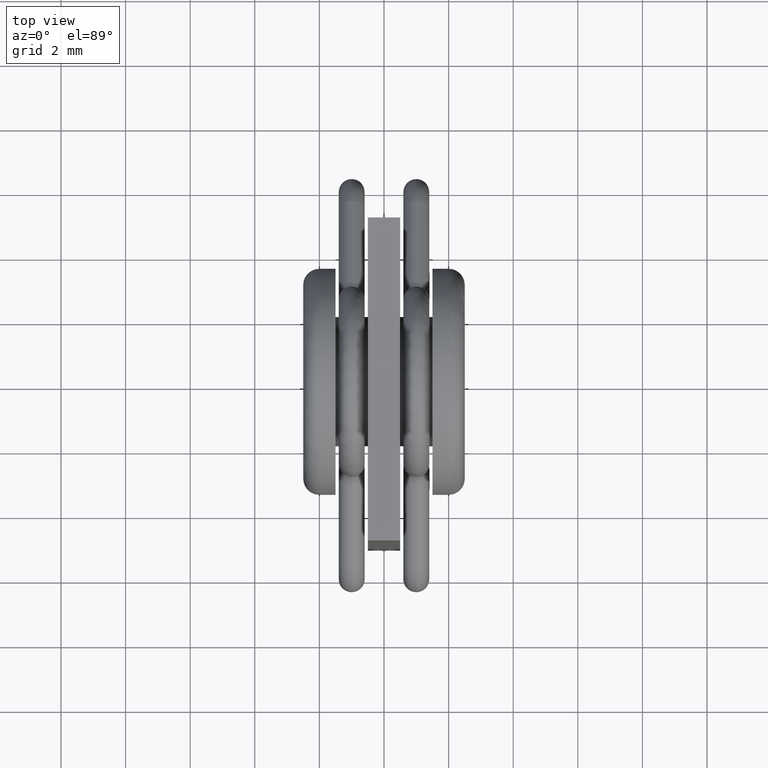
[diagram: clean part render]
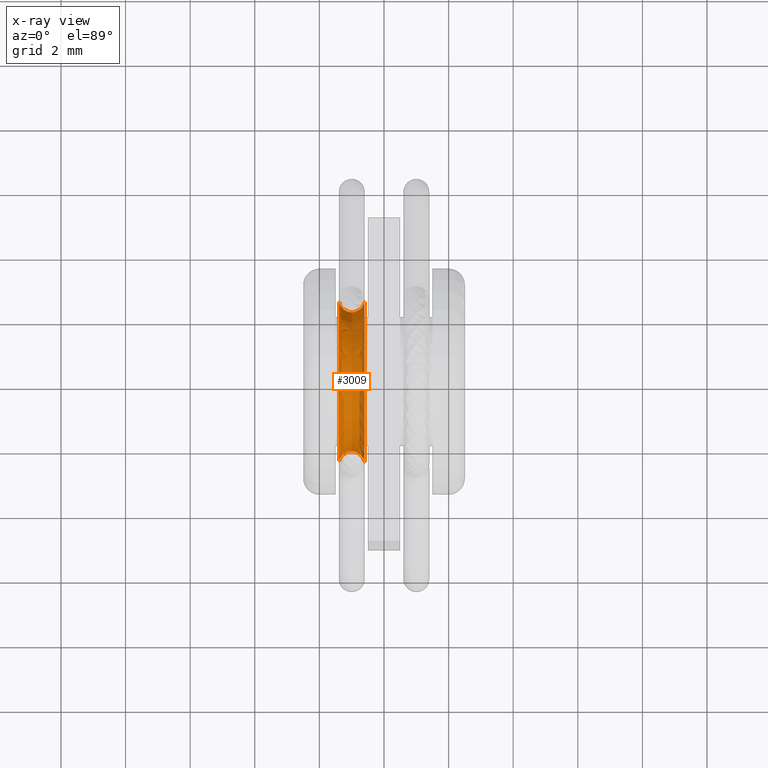
[diagram: x-ray — body ghosted, one internal face saturated and labeled with its STEP entity id]
A machine part, top view, then the same camera in x-ray: the body is ghosted and one INTERNAL B-rep face — a face not visible from any outside direction — is saturated and labeled: STEP entity #3009.
In plain terms, the highlighted face is a freeform B-spline surface patch.
Its self-contained STEP definition (entity closure, byte-faithful):
#5 = CARTESIAN_POINT ( 'NONE',  ( -0.5999999999999993117, 3.344587359466233867, 13.21971619596601677 ) ) ;
#13 = CARTESIAN_POINT ( 'NONE',  ( -1.399999999999999467, 2.550000000000002043, 12.78414580212309026 ) ) ;
#18 = CARTESIAN_POINT ( 'NONE',  ( -0.5999999999999990896, 3.350009266988449141, 12.91676238393189102 ) ) ;
#27 = CARTESIAN_POINT ( 'NONE',  ( -1.400000000000000133, 0.6675863731872427875, 15.54999999999883897 ) ) ;
#29 = EDGE_CURVE ( 'NONE', #499, #1039, #1007, .T. ) ;
#43 = CARTESIAN_POINT ( 'NONE',  ( -0.5999999999999996447, 2.446168698231667715, 13.01365392415007527 ) ) ;
#71 = CARTESIAN_POINT ( 'NONE',  ( -0.5999999999999996447, 2.468288161014300819, 13.66175922868808001 ) ) ;
#90 = CARTESIAN_POINT ( 'NONE',  ( -0.5999999999999999778, 1.693923247754893335, 13.45414849027617521 ) ) ;
#100 = CARTESIAN_POINT ( 'NONE',  ( -0.6423638675424737654, -2.342088657897357873, 13.02688372008577744 ) ) ;
#128 = CARTESIAN_POINT ( 'NONE',  ( -0.9999999999999963363, 2.149461642521075522, 13.05065182157097148 ) ) ;
#148 = CARTESIAN_POINT ( 'NONE',  ( -0.5999999999999997558, 2.529478931371553330, 13.33348523255367368 ) ) ;
#158 = ORIENTED_EDGE ( 'NONE', *, *, #1685, .F. ) ;
#162 = CARTESIAN_POINT ( 'NONE',  ( -0.6000000000000013101, -1.750004840964172415, 12.93933523953642784 ) ) ;
#169 = CARTESIAN_POINT ( 'NONE',  ( -0.5999999999999998668, 1.331067674462010686, 15.27517690940495854 ) ) ;
#180 = CARTESIAN_POINT ( 'NONE',  ( -0.9999999999999963363, 2.149461642521075522, 13.05065182157097148 ) ) ;
#183 = CARTESIAN_POINT ( 'NONE',  ( -1.400000000000000799, -1.747172501213716478, 13.11477711729564888 ) ) ;
#184 = CARTESIAN_POINT ( 'NONE',  ( -1.209534549102453393, -2.193180601715889910, 13.04540498428416129 ) ) ;
#198 = CARTESIAN_POINT ( 'NONE',  ( -0.6000000000000015321, -3.178629614356319966, 14.08022694973900002 ) ) ;
#212 = CARTESIAN_POINT ( 'NONE',  ( -1.399999999999999467, 2.550000000000002043, 12.85609720141527745 ) ) ;
#225 = CARTESIAN_POINT ( 'NONE',  ( -1.399999999999999689, 2.039149600807544704, 14.56709498333606234 ) ) ;
#241 = CARTESIAN_POINT ( 'NONE',  ( -1.399999999999999467, 2.550000000000002043, 12.78414580212309026 ) ) ;
#253 = CARTESIAN_POINT ( 'NONE',  ( -0.6000000000000016431, -3.350000000000000977, 12.85609720141538048 ) ) ;
#259 = CARTESIAN_POINT ( 'NONE',  ( -1.399999999999999911, 1.750004840964110464, 12.93933523953643849 ) ) ;
#271 = CARTESIAN_POINT ( 'NONE',  ( -1.399999999999999467, 2.550000000000009148, 13.00000000000001066 ) ) ;
#275 = CARTESIAN_POINT ( 'NONE',  ( -0.6428036577835406495, 2.341667357157602769, 13.02693604283492057 ) ) ;
#297 = CARTESIAN_POINT ( 'NONE',  ( -1.400000000000001243, -2.517196728838199782, 13.41615929504404825 ) ) ;
#304 = CARTESIAN_POINT ( 'NONE',  ( -1.400000000000000133, 1.399416392711129165, 14.07545734150523309 ) ) ;
#320 = CARTESIAN_POINT ( 'NONE',  ( -1.400000000000000799, -1.735916913686351037, 13.22886241449764455 ) ) ;
#335 = CARTESIAN_POINT ( 'NONE',  ( -0.6000000000000015321, -2.550000000001543032, 13.00000000000575717 ) ) ;
#383 = CARTESIAN_POINT ( 'NONE',  ( -0.6000000000000004219, -0.4581475110107759985, 14.75000000000115818 ) ) ;
#398 = CARTESIAN_POINT ( 'NONE',  ( -0.5999999999999998668, 1.331067674462010686, 15.27517690940495854 ) ) ;
#413 = CARTESIAN_POINT ( 'NONE',  ( -0.6000000000000011990, -2.468288161014357218, 13.66175922868801251 ) ) ;
#414 = CARTESIAN_POINT ( 'NONE',  ( -1.104746793284792750, -2.149461642521046212, 13.05065182157087911 ) ) ;
#421 = CARTESIAN_POINT ( 'NONE',  ( -1.399999999999999467, 2.227823959846286783, 14.28480567347927810 ) ) ;
#425 = B_SPLINE_CURVE_WITH_KNOTS ( 'NONE', 3,
 ( #128, #2803, #1102, #2283, #3010, #1814 ),
 .UNSPECIFIED., .F., .F.,
 ( 4, 2, 4 ),
 ( 0.0006204604756801583272, 0.0009343973126508284092, 0.001248334149621498600 ),
 .UNSPECIFIED. ) ;
#433 = CARTESIAN_POINT ( 'NONE',  ( -1.400000000000001243, -1.660478156753226076, 13.56429766031139117 ) ) ;
#434 = CARTESIAN_POINT ( 'NONE',  ( -1.400000000000001243, -2.550000000000001155, 13.00000000000000178 ) ) ;
#447 = CARTESIAN_POINT ( 'NONE',  ( -1.400000000000001465, -3.323040949056754290, 13.43810805060968150 ) ) ;
#458 = CARTESIAN_POINT ( 'NONE',  ( -0.6000000000000010880, -2.678882808903880530, 15.05873262516628230 ) ) ;
#470 = CARTESIAN_POINT ( 'NONE',  ( -1.399999999999999245, 3.344587359466234755, 13.21971619596601677 ) ) ;
#481 = CARTESIAN_POINT ( 'NONE',  ( -0.9999999999999963363, 2.149461642521075522, 13.05065182157097148 ) ) ;
#488 = CARTESIAN_POINT ( 'NONE',  ( -0.6000000000000010880, -1.748657533117035534, 15.98895790059223998 ) ) ;
#493 = CARTESIAN_POINT ( 'NONE',  ( -1.399999999999999467, 2.545879930339978170, 13.16724665663082305 ) ) ;
#498 = B_SPLINE_CURVE_WITH_KNOTS ( 'NONE', 3,
 ( #271, #972, #1739, #2601, #1502, #2469, #1260, #421, #1404, #2408, #2025, #2718, #2264, #1276, #2983, #817, #2498, #1553, #800, #2011, #1785, #851 ),
 .UNSPECIFIED., .F., .F.,
 ( 4, 2, 2, 2, 2, 2, 2, 2, 2, 2, 4 ),
 ( -1.545224709151703387E-15, 0.03124999999999862957, 0.06249999999999879957, 0.1249999999999991535, 0.2499999999999998335, 0.5000000000000012212, 0.7500000000000026645, 0.8750000000000033307, 0.9375000000000036637, 0.9687500000000037748, 1.000000000000003997 ),
 .UNSPECIFIED. ) ;
#499 = VERTEX_POINT ( 'NONE', #2221 ) ;
#500 = CARTESIAN_POINT ( 'NONE',  ( -1.400000000000001465, -2.926749123719576851, 14.68788196319920125 ) ) ;
#502 = ORIENTED_EDGE ( 'NONE', *, *, #29, .T. ) ;
#522 = CARTESIAN_POINT ( 'NONE',  ( -1.400000000000001021, -1.331067674462242278, 15.27517690940617356 ) ) ;
#537 = CARTESIAN_POINT ( 'NONE',  ( -1.399999999999999467, 2.419553885554824202, 13.82226230502555353 ) ) ;
#551 = CARTESIAN_POINT ( 'NONE',  ( -0.5999999999999990896, 3.350000000000000977, 12.85609720141527923 ) ) ;
#571 = CARTESIAN_POINT ( 'NONE',  ( -0.6000000000000000888, 1.749994369725758725, 13.07055603607908267 ) ) ;
#597 = VERTEX_POINT ( 'NONE', #2295 ) ;
#612 = EDGE_LOOP ( 'NONE', ( #2369, #1894, #1689, #502, #158, #2475 ) ) ;
#639 = CARTESIAN_POINT ( 'NONE',  ( -0.6000000000000004219, 0.4581475110107837145, 14.74999999999884004 ) ) ;
#654 = CARTESIAN_POINT ( 'NONE',  ( -0.6000000000000000888, 1.735916913686352370, 13.22886241449764988 ) ) ;
#658 = CARTESIAN_POINT ( 'NONE',  ( -0.6000000000000013101, -2.227823959846339630, 14.28480567348001529 ) ) ;
#669 = CARTESIAN_POINT ( 'NONE',  ( -0.6000000000000000888, 1.750000000000001554, 12.78414580212309204 ) ) ;
#675 = CARTESIAN_POINT ( 'NONE',  ( -0.5999999999999997558, 2.529478931371553330, 13.33348523255367368 ) ) ;
#685 = CARTESIAN_POINT ( 'NONE',  ( -0.5999999999999993117, 3.323040949056754734, 13.43810805060969393 ) ) ;
#687 = CARTESIAN_POINT ( 'NONE',  ( -1.400000000000001465, -2.444751026147265804, 13.01384034950394764 ) ) ;
#695 = CARTESIAN_POINT ( 'NONE',  ( -0.6000000000000004219, 0.6675863731872418994, 15.54999999999883897 ) ) ;
#699 = CARTESIAN_POINT ( 'NONE',  ( -1.399999999999999467, 2.419553885554824202, 13.82226230502555353 ) ) ;
#713 = CARTESIAN_POINT ( 'NONE',  ( -1.399999999999999467, 2.550007053976280247, 12.92804881173416298 ) ) ;
#733 = CARTESIAN_POINT ( 'NONE',  ( -1.399999999999999467, 3.350000000000001865, 12.78414580212309204 ) ) ;
#743 = CARTESIAN_POINT ( 'NONE',  ( -1.399999999999999467, 2.227823959846286783, 14.28480567347927810 ) ) ;
#750 = CARTESIAN_POINT ( 'NONE',  ( -1.400000000000001465, -1.748657533117180529, 15.98895790059223998 ) ) ;
#757 = CARTESIAN_POINT ( 'NONE',  ( -0.8952353300198849784, 2.149461642521073745, 13.05065182157098214 ) ) ;
#769 = CARTESIAN_POINT ( 'NONE',  ( -1.399999999999999911, 1.727487951163474200, 13.28559951620664670 ) ) ;
#774 = CARTESIAN_POINT ( 'NONE',  ( -1.400000000000001021, -2.039149600807420359, 14.56709498333546016 ) ) ;
#787 = CARTESIAN_POINT ( 'NONE',  ( -1.399999999999999467, 2.549991795886098256, 13.08368269480378920 ) ) ;
#800 = CARTESIAN_POINT ( 'NONE',  ( -1.400000000000001021, -2.529478931371552441, 13.33348523255366125 ) ) ;
#802 = CARTESIAN_POINT ( 'NONE',  ( -1.400000000000000799, -1.727487951163421354, 13.28559951620666801 ) ) ;
#817 = CARTESIAN_POINT ( 'NONE',  ( -1.400000000000001243, -2.419553885554790895, 13.82226230502519648 ) ) ;
#818 = CARTESIAN_POINT ( 'NONE',  ( -0.6000000000000000888, 1.660478156753322443, 13.56429766031170026 ) ) ;
#825 = CARTESIAN_POINT ( 'NONE',  ( -1.400000000000001021, -1.331067674462242278, 15.27517690940617356 ) ) ;
#851 = CARTESIAN_POINT ( 'NONE',  ( -1.400000000000001243, -2.550000000000001155, 13.00000000000000178 ) ) ;
#883 = CARTESIAN_POINT ( 'NONE',  ( -1.400000000000001243, -1.750000000000001554, 12.78414580212309204 ) ) ;
#887 = EDGE_CURVE ( 'NONE', #998, #499, #1487, .T. ) ;
#905 = CARTESIAN_POINT ( 'NONE',  ( -0.6000000000000009770, -1.331067674462243167, 15.27517690940617356 ) ) ;
#923 = CARTESIAN_POINT ( 'NONE',  ( -0.6000000000000013101, -2.545879930339973729, 13.16724665663084970 ) ) ;
#935 = CARTESIAN_POINT ( 'NONE',  ( -0.6000000000000016431, -3.350000000000000977, 12.78414580212309204 ) ) ;
#952 = CARTESIAN_POINT ( 'NONE',  ( -1.399999999999999467, 2.529478931371554218, 13.33348523255367368 ) ) ;
#959 = CARTESIAN_POINT ( 'NONE',  ( -0.6000000000000013101, -2.545879930339787212, 13.16724665663274330 ) ) ;
#961 = B_SPLINE_CURVE_WITH_KNOTS ( 'NONE', 3,
 ( #2146, #1686, #1401, #675, #1189, #2586, #2117, #2392, #2821, #169, #695, #1144, #3105, #2176, #658, #1674, #1163, #1206, #2635, #959, #1919, #1639 ),
 .UNSPECIFIED., .F., .F.,
 ( 4, 2, 2, 2, 2, 2, 2, 2, 2, 2, 4 ),
 ( -3.703112690096296887E-15, 0.03124999999997413874, 0.06249999999995197592, 0.1249999999999076572, 0.2499999999998190336, 0.4999999999996417310, 0.7499999999994645394, 0.8749999999993758326, 0.9374999999993315347, 0.9687499999993094413, 0.9999999999992872368 ),
 .UNSPECIFIED. ) ;
#967 = CARTESIAN_POINT ( 'NONE',  ( -0.5999999999999990896, 3.349989222046435344, 13.09680935352849573 ) ) ;
#972 = CARTESIAN_POINT ( 'NONE',  ( -1.399999999999999911, 2.549991795886099144, 13.08368269480378210 ) ) ;
#973 = CARTESIAN_POINT ( 'NONE',  ( -1.400000000000000133, -0.4581475110107751658, 14.75000000000115818 ) ) ;
#980 = CARTESIAN_POINT ( 'NONE',  ( -0.6000000000000015321, -3.344587359466212106, 13.21971619596604874 ) ) ;
#986 = CARTESIAN_POINT ( 'NONE',  ( -1.399999999999999467, 2.550007053976280247, 12.92804881173416298 ) ) ;
#995 = CARTESIAN_POINT ( 'NONE',  ( -0.5999999999999990896, 3.306905506513007520, 13.54671907388135743 ) ) ;
#998 = VERTEX_POINT ( 'NONE', #2808 ) ;
#1004 = CARTESIAN_POINT ( 'NONE',  ( -1.399999999999999911, 1.749994369725759835, 13.07055603607908267 ) ) ;
#1007 = B_SPLINE_CURVE_WITH_KNOTS ( 'NONE', 3,
 ( #3086, #414, #184, #2831, #687, #434 ),
 .UNSPECIFIED., .F., .F.,
 ( 4, 2, 4 ),
 ( 0.0006285848876777842082, 0.0009470352821889769807, 0.001265485676700169645 ),
 .UNSPECIFIED. ) ;
#1016 = CARTESIAN_POINT ( 'NONE',  ( -1.400000000000001243, -2.550000000000001155, 12.78414580212309026 ) ) ;
#1023 = CARTESIAN_POINT ( 'NONE',  ( -1.400000000000001243, -2.549991795886024537, 13.08368269480380164 ) ) ;
#1030 = CARTESIAN_POINT ( 'NONE',  ( -1.399999999999999467, 2.529478931371554218, 13.33348523255367368 ) ) ;
#1039 = VERTEX_POINT ( 'NONE', #1817 ) ;
#1048 = CARTESIAN_POINT ( 'NONE',  ( -0.6000000000000014211, -2.550000000000001155, 12.85609720141537871 ) ) ;
#1064 = CARTESIAN_POINT ( 'NONE',  ( -0.6000000000000013101, -1.528898795973029578, 13.88172938376082932 ) ) ;
#1075 = CARTESIAN_POINT ( 'NONE',  ( -0.7909503762023473161, -2.192694063895209933, 13.04546549623865381 ) ) ;
#1102 = CARTESIAN_POINT ( 'NONE',  ( -1.209083689494478531, 2.192708194320271531, 13.04546381466862393 ) ) ;
#1122 = CARTESIAN_POINT ( 'NONE',  ( -0.6000000000000000888, 1.747172501213720475, 13.11477711729562934 ) ) ;
#1136 = CARTESIAN_POINT ( 'NONE',  ( -0.6000000000000013101, -1.749994369725686116, 13.07055603607910577 ) ) ;
#1144 = CARTESIAN_POINT ( 'NONE',  ( -0.6000000000000004219, -0.6675863731872341278, 15.55000000000115712 ) ) ;
#1156 = CARTESIAN_POINT ( 'NONE',  ( -0.5999999999999996447, 2.550000000000001155, 12.78414580212309026 ) ) ;
#1163 = CARTESIAN_POINT ( 'NONE',  ( -0.6000000000000011990, -2.468288161014357218, 13.66175922868801251 ) ) ;
#1169 = CARTESIAN_POINT ( 'NONE',  ( -1.399999999999999467, 3.349989222046436232, 13.09680935352849573 ) ) ;
#1182 = CARTESIAN_POINT ( 'NONE',  ( -1.399999999999999467, 2.549991795886098256, 13.08368269480378920 ) ) ;
#1189 = CARTESIAN_POINT ( 'NONE',  ( -0.5999999999999996447, 2.517196728838267727, 13.41615929504400206 ) ) ;
#1201 = CARTESIAN_POINT ( 'NONE',  ( -1.399999999999999689, 1.331067674462011352, 15.27517690940495854 ) ) ;
#1206 = CARTESIAN_POINT ( 'NONE',  ( -0.6000000000000011990, -2.517196728838235753, 13.41615929504404825 ) ) ;
#1212 = CARTESIAN_POINT ( 'NONE',  ( -1.400000000000000133, 0.6675863731872427875, 15.54999999999883897 ) ) ;
#1223 = CARTESIAN_POINT ( 'NONE',  ( -0.6000000000000015321, -2.926749123719649237, 14.68788196319920125 ) ) ;
#1247 = CARTESIAN_POINT ( 'NONE',  ( -1.400000000000001243, -2.227823959846338742, 14.28480567348001529 ) ) ;
#1260 = CARTESIAN_POINT ( 'NONE',  ( -1.399999999999999467, 2.419553885554824202, 13.82226230502555353 ) ) ;
#1276 = CARTESIAN_POINT ( 'NONE',  ( -1.400000000000001021, -2.039149600807420359, 14.56709498333546016 ) ) ;
#1278 = CARTESIAN_POINT ( 'NONE',  ( -1.399999999999999467, 2.550000000000002043, 12.85609720141527745 ) ) ;
#1298 = CARTESIAN_POINT ( 'NONE',  ( -0.6000000000000004219, -0.6675863731872341278, 15.55000000000115712 ) ) ;
#1312 = CARTESIAN_POINT ( 'NONE',  ( -0.6000000000000015321, -2.444826124873128226, 13.01383047387037450 ) ) ;
#1360 = CARTESIAN_POINT ( 'NONE',  ( -0.6000000000000010880, -1.693923247754989925, 13.45414849027615922 ) ) ;
#1374 = B_SPLINE_CURVE_WITH_KNOTS ( 'NONE', 3,
 ( #2676, #43, #275, #2188, #757, #481 ),
 .UNSPECIFIED., .F., .F.,
 ( 4, 2, 4 ),
 ( -7.861450897024219319E-06, 0.0003062995123915670582, 0.0006204604756801583272 ),
 .UNSPECIFIED. ) ;
#1377 = CARTESIAN_POINT ( 'NONE',  ( -0.6000000000000004219, 0.6675863731872418994, 15.54999999999883897 ) ) ;
#1392 = CARTESIAN_POINT ( 'NONE',  ( -0.6000000000000000888, 1.399416392711164248, 14.07545734150523309 ) ) ;
#1401 = CARTESIAN_POINT ( 'NONE',  ( -0.5999999999999997558, 2.545879930339978170, 13.16724665663081417 ) ) ;
#1404 = CARTESIAN_POINT ( 'NONE',  ( -1.399999999999999689, 2.039149600807544704, 14.56709498333606234 ) ) ;
#1413 = CARTESIAN_POINT ( 'NONE',  ( -0.6000000000000014211, -2.550007053976341975, 12.92804881173416121 ) ) ;
#1425 = CARTESIAN_POINT ( 'NONE',  ( -1.400000000000001910, -3.349989222046363402, 13.09680935352849929 ) ) ;
#1437 = CARTESIAN_POINT ( 'NONE',  ( -0.5999999999999990896, 3.242653074273708302, 13.86936996709998660 ) ) ;
#1456 = CARTESIAN_POINT ( 'NONE',  ( -1.400000000000001910, -3.350009266988511758, 12.91676238393189635 ) ) ;
#1461 = CARTESIAN_POINT ( 'NONE',  ( -1.400000000000000133, 0.4581475110107846582, 14.74999999999884004 ) ) ;
#1466 = CARTESIAN_POINT ( 'NONE',  ( -0.6000000000000014211, -3.242653074273723401, 13.86936996709986758 ) ) ;
#1473 = CARTESIAN_POINT ( 'NONE',  ( -1.399999999999999467, 2.468288161014374094, 13.66175922868808001 ) ) ;
#1485 = CARTESIAN_POINT ( 'NONE',  ( -1.400000000000000133, -0.6675863731872332396, 15.55000000000115712 ) ) ;
#1487 = B_SPLINE_CURVE_WITH_KNOTS ( 'NONE', 3,
 ( #335, #1312, #100, #1075, #2765, #2164 ),
 .UNSPECIFIED., .F., .F.,
 ( 4, 2, 4 ),
 ( -7.861450897010477057E-06, 0.0003103617183903868292, 0.0006285848876777842082 ),
 .UNSPECIFIED. ) ;
#1492 = CARTESIAN_POINT ( 'NONE',  ( -1.400000000000001021, -2.529478931371552441, 13.33348523255366125 ) ) ;
#1502 = CARTESIAN_POINT ( 'NONE',  ( -1.399999999999999467, 2.517196728838232200, 13.41615929504400206 ) ) ;
#1519 = CARTESIAN_POINT ( 'NONE',  ( -1.399999999999999911, 1.747172501213721141, 13.11477711729562934 ) ) ;
#1534 = CARTESIAN_POINT ( 'NONE',  ( -0.5999999999999997558, 2.545879930339977282, 13.16724665663082305 ) ) ;
#1553 = CARTESIAN_POINT ( 'NONE',  ( -1.400000000000001243, -2.517196728838199782, 13.41615929504404825 ) ) ;
#1555 = CARTESIAN_POINT ( 'NONE',  ( -0.6000000000000000888, 0.9134778158070561149, 14.56139591821890811 ) ) ;
#1558 = CARTESIAN_POINT ( 'NONE',  ( -1.399999999999999467, 2.550000000000009148, 13.00000000000001066 ) ) ;
#1616 = CARTESIAN_POINT ( 'NONE',  ( -0.6000000000000010880, -1.747172501213735574, 13.11477711729564888 ) ) ;
#1633 = CARTESIAN_POINT ( 'NONE',  ( -0.5999999999999996447, 2.549991795886097368, 13.08368269480378920 ) ) ;
#1639 = CARTESIAN_POINT ( 'NONE',  ( -0.6000000000000015321, -2.550000000001543032, 13.00000000000575717 ) ) ;
#1649 = CARTESIAN_POINT ( 'NONE',  ( -0.6000000000000014211, -2.549991795886024537, 13.08368269480380164 ) ) ;
#1669 = CARTESIAN_POINT ( 'NONE',  ( -1.399999999999999467, 1.748657533116892759, 15.98895790059101252 ) ) ;
#1674 = CARTESIAN_POINT ( 'NONE',  ( -0.6000000000000013101, -2.419553885554791783, 13.82226230502519648 ) ) ;
#1680 = CARTESIAN_POINT ( 'NONE',  ( -1.399999999999999467, 2.227823959846286783, 14.28480567347927810 ) ) ;
#1685 = EDGE_CURVE ( 'NONE', #2784, #1039, #498, .T. ) ;
#1686 = CARTESIAN_POINT ( 'NONE',  ( -0.5999999999999996447, 2.549991795886098256, 13.08368269480377144 ) ) ;
#1689 = ORIENTED_EDGE ( 'NONE', *, *, #887, .T. ) ;
#1692 = CARTESIAN_POINT ( 'NONE',  ( -0.5999999999999993117, 3.178629614356325739, 14.08022694973940858 ) ) ;
#1699 = CARTESIAN_POINT ( 'NONE',  ( -1.400000000000000799, -1.399416392711032131, 14.07545734150463801 ) ) ;
#1710 = CARTESIAN_POINT ( 'NONE',  ( -0.6000000000000015321, -3.323040949056772941, 13.43810805060967795 ) ) ;
#1716 = CARTESIAN_POINT ( 'NONE',  ( -1.400000000000001243, -2.550000000000001155, 12.85609720141537871 ) ) ;
#1724 = CARTESIAN_POINT ( 'NONE',  ( -1.399999999999999245, 3.242653074273744718, 13.86936996709998660 ) ) ;
#1739 = CARTESIAN_POINT ( 'NONE',  ( -1.399999999999999467, 2.545879930339979058, 13.16724665663082128 ) ) ;
#1740 = CARTESIAN_POINT ( 'NONE',  ( -1.399999999999999911, 1.693923247755002803, 13.45414849027617521 ) ) ;
#1761 = CARTESIAN_POINT ( 'NONE',  ( -1.400000000000001243, -2.419553885554790895, 13.82226230502519648 ) ) ;
#1772 = CARTESIAN_POINT ( 'NONE',  ( -0.5999999999999990896, 3.350000000000000977, 12.78414580212309204 ) ) ;
#1785 = CARTESIAN_POINT ( 'NONE',  ( -1.400000000000001243, -2.549991795886024981, 13.08368269480378210 ) ) ;
#1786 = CARTESIAN_POINT ( 'NONE',  ( -1.400000000000001243, -1.749994369725686116, 13.07055603607910577 ) ) ;
#1791 =( BOUNDED_SURFACE ( )  B_SPLINE_SURFACE ( 3, 3, ( 
 ( #13, #1278, #986, #787, #493, #1030, #1992, #1473, #537, #743, #2689, #2924, #27, #1485, #522, #2452, #1247, #1761, #1946, #2662, #2201, #2438, #2215, #2720, #1716, #1016 ),
 ( #2937, #2907, #259, #1004, #1519, #2483, #769, #1740, #2701, #1964, #304, #2247, #1461, #973, #1931, #1699, #3085, #433, #1869, #802, #320, #183, #1786, #2844, #2984, #883 ),
 ( #669, #2610, #2566, #571, #1122, #654, #2089, #90, #818, #2748, #1392, #1555, #639, #383, #1848, #2340, #1064, #2027, #1360, #1884, #2597, #1616, #1136, #162, #2326, #2104 ),
 ( #1156, #2812, #3065, #1633, #1534, #148, #2580, #71, #2499, #3043, #2731, #398, #1377, #1298, #905, #2012, #2265, #2830, #413, #2356, #2126, #923, #1649, #1413, #1048, #2968 ),
 ( #1772, #551, #18, #967, #5, #685, #995, #1437, #1692, #3130, #2639, #2898, #2670, #2170, #488, #458, #1223, #198, #1466, #2431, #1710, #980, #2400, #2421, #253, #935 ),
 ( #733, #1938, #2652, #1169, #470, #2193, #2857, #1724, #1959, #1924, #2388, #1669, #2627, #2918, #750, #2683, #500, #2139, #2374, #2153, #447, #2884, #1425, #1456, #3100, #1895 ),
 ( #241, #212, #713, #1182, #3114, #952, #1914, #2873, #699, #1680, #225, #1201, #1212, #2182, #825, #774, #1981, #2476, #2018, #297, #1492, #2223, #1023, #2739, #2941, #2000 ) ),
 .UNSPECIFIED., .T., .F., .F. ) 
 B_SPLINE_SURFACE_WITH_KNOTS ( ( 4, 3, 4 ),
 ( 4, 2, 2, 2, 2, 2, 2, 2, 2, 2, 2, 2, 4 ),
 ( 0.000000000000000000, 0.5000000000000000000, 1.000000000000000000 ),
 ( -0.02686905146373682815, 0.000000000000000000, 0.03125000000000000000, 0.06250000000000000000, 0.1250000000000000000, 0.2500000000000000000, 0.5000000000000000000, 0.7500000000000000000, 0.8750000000000000000, 0.9375000000000000000, 0.9687500000000000000, 1.000000000000000000, 1.026869051463737748 ),
 .UNSPECIFIED. ) 
 GEOMETRIC_REPRESENTATION_ITEM ( )  RATIONAL_B_SPLINE_SURFACE ( (
 ( 1.000000000000000000, 1.000000000000000000, 1.000000000000000000, 1.000000000000000000, 1.000000000000000000, 1.000000000000000000, 1.000000000000000000, 1.000000000000000000, 1.000000000000000000, 1.000000000000000000, 1.000000000000000000, 1.000000000000000000, 1.000000000000000000, 1.000000000000000000, 1.000000000000000000, 1.000000000000000000, 1.000000000000000000, 1.000000000000000000, 1.000000000000000000, 1.000000000000000000, 1.000000000000000000, 1.000000000000000000, 1.000000000000000000, 1.000000000000000000, 1.000000000000000000, 1.000000000000000000),
 ( 0.3333333333333333703, 0.3333333333333333703, 0.3333333333333333703, 0.3333333333333333703, 0.3333333333333333703, 0.3333333333333333703, 0.3333333333333333703, 0.3333333333333333703, 0.3333333333333333703, 0.3333333333333333703, 0.3333333333333333703, 0.3333333333333333703, 0.3333333333333333703, 0.3333333333333333703, 0.3333333333333333703, 0.3333333333333333703, 0.3333333333333333703, 0.3333333333333333703, 0.3333333333333333703, 0.3333333333333333703, 0.3333333333333333703, 0.3333333333333333703, 0.3333333333333333703, 0.3333333333333333703, 0.3333333333333333703, 0.3333333333333333703),
 ( 0.3333333333333333703, 0.3333333333333333703, 0.3333333333333333703, 0.3333333333333333703, 0.3333333333333333703, 0.3333333333333333703, 0.3333333333333333703, 0.3333333333333333703, 0.3333333333333333703, 0.3333333333333333703, 0.3333333333333333703, 0.3333333333333333703, 0.3333333333333333703, 0.3333333333333333703, 0.3333333333333333703, 0.3333333333333333703, 0.3333333333333333703, 0.3333333333333333703, 0.3333333333333333703, 0.3333333333333333703, 0.3333333333333333703, 0.3333333333333333703, 0.3333333333333333703, 0.3333333333333333703, 0.3333333333333333703, 0.3333333333333333703),
 ( 1.000000000000000000, 1.000000000000000000, 1.000000000000000000, 1.000000000000000000, 1.000000000000000000, 1.000000000000000000, 1.000000000000000000, 1.000000000000000000, 1.000000000000000000, 1.000000000000000000, 1.000000000000000000, 1.000000000000000000, 1.000000000000000000, 1.000000000000000000, 1.000000000000000000, 1.000000000000000000, 1.000000000000000000, 1.000000000000000000, 1.000000000000000000, 1.000000000000000000, 1.000000000000000000, 1.000000000000000000, 1.000000000000000000, 1.000000000000000000, 1.000000000000000000, 1.000000000000000000),
 ( 0.3333333333333333703, 0.3333333333333333703, 0.3333333333333333703, 0.3333333333333333703, 0.3333333333333333703, 0.3333333333333333703, 0.3333333333333333703, 0.3333333333333333703, 0.3333333333333333703, 0.3333333333333333703, 0.3333333333333333703, 0.3333333333333333703, 0.3333333333333333703, 0.3333333333333333703, 0.3333333333333333703, 0.3333333333333333703, 0.3333333333333333703, 0.3333333333333333703, 0.3333333333333333703, 0.3333333333333333703, 0.3333333333333333703, 0.3333333333333333703, 0.3333333333333333703, 0.3333333333333333703, 0.3333333333333333703, 0.3333333333333333703),
 ( 0.3333333333333333703, 0.3333333333333333703, 0.3333333333333333703, 0.3333333333333333703, 0.3333333333333333703, 0.3333333333333333703, 0.3333333333333333703, 0.3333333333333333703, 0.3333333333333333703, 0.3333333333333333703, 0.3333333333333333703, 0.3333333333333333703, 0.3333333333333333703, 0.3333333333333333703, 0.3333333333333333703, 0.3333333333333333703, 0.3333333333333333703, 0.3333333333333333703, 0.3333333333333333703, 0.3333333333333333703, 0.3333333333333333703, 0.3333333333333333703, 0.3333333333333333703, 0.3333333333333333703, 0.3333333333333333703, 0.3333333333333333703),
 ( 1.000000000000000000, 1.000000000000000000, 1.000000000000000000, 1.000000000000000000, 1.000000000000000000, 1.000000000000000000, 1.000000000000000000, 1.000000000000000000, 1.000000000000000000, 1.000000000000000000, 1.000000000000000000, 1.000000000000000000, 1.000000000000000000, 1.000000000000000000, 1.000000000000000000, 1.000000000000000000, 1.000000000000000000, 1.000000000000000000, 1.000000000000000000, 1.000000000000000000, 1.000000000000000000, 1.000000000000000000, 1.000000000000000000, 1.000000000000000000, 1.000000000000000000, 1.000000000000000000) ) ) 
 REPRESENTATION_ITEM ( '' )  SURFACE ( )  );
#1814 = CARTESIAN_POINT ( 'NONE',  ( -1.399999999999999467, 2.550000000000009148, 13.00000000000001066 ) ) ;
#1817 = CARTESIAN_POINT ( 'NONE',  ( -1.400000000000001243, -2.550000000000001155, 13.00000000000000178 ) ) ;
#1848 = CARTESIAN_POINT ( 'NONE',  ( -0.6000000000000009770, -0.9134778158074491339, 14.56139591822010537 ) ) ;
#1869 = CARTESIAN_POINT ( 'NONE',  ( -1.400000000000000799, -1.693923247755098727, 13.45414849027615922 ) ) ;
#1884 = CARTESIAN_POINT ( 'NONE',  ( -0.6000000000000010880, -1.727487951163475310, 13.28559951620666801 ) ) ;
#1894 = ORIENTED_EDGE ( 'NONE', *, *, #2878, .T. ) ;
#1895 = CARTESIAN_POINT ( 'NONE',  ( -1.400000000000001910, -3.350000000000000977, 12.78414580212309204 ) ) ;
#1914 = CARTESIAN_POINT ( 'NONE',  ( -1.399999999999999467, 2.517196728838232200, 13.41615929504400206 ) ) ;
#1919 = CARTESIAN_POINT ( 'NONE',  ( -0.6000000000000014211, -2.549991795885837131, 13.08368269480761548 ) ) ;
#1924 = CARTESIAN_POINT ( 'NONE',  ( -1.399999999999999467, 2.926749123719651902, 14.68788196319836459 ) ) ;
#1931 = CARTESIAN_POINT ( 'NONE',  ( -1.400000000000000799, -0.9134778158073045828, 14.56139591822010537 ) ) ;
#1938 = CARTESIAN_POINT ( 'NONE',  ( -1.399999999999999467, 3.350000000000001865, 12.85609720141527923 ) ) ;
#1946 = CARTESIAN_POINT ( 'NONE',  ( -1.400000000000001243, -2.468288161014429605, 13.66175922868801251 ) ) ;
#1959 = CARTESIAN_POINT ( 'NONE',  ( -1.399999999999999467, 3.178629614356326627, 14.08022694973940858 ) ) ;
#1964 = CARTESIAN_POINT ( 'NONE',  ( -1.400000000000000133, 1.528898795972922331, 13.88172938376019516 ) ) ;
#1981 = CARTESIAN_POINT ( 'NONE',  ( -1.400000000000001243, -2.227823959846338742, 14.28480567348001529 ) ) ;
#1992 = CARTESIAN_POINT ( 'NONE',  ( -1.399999999999999467, 2.517196728838232200, 13.41615929504400206 ) ) ;
#2000 = CARTESIAN_POINT ( 'NONE',  ( -1.400000000000001243, -2.550000000000001155, 12.78414580212309026 ) ) ;
#2011 = CARTESIAN_POINT ( 'NONE',  ( -1.400000000000001021, -2.545879930339973729, 13.16724665663083726 ) ) ;
#2012 = CARTESIAN_POINT ( 'NONE',  ( -0.6000000000000009770, -2.039149600807421248, 14.56709498333545838 ) ) ;
#2018 = CARTESIAN_POINT ( 'NONE',  ( -1.400000000000001243, -2.468288161014429605, 13.66175922868801251 ) ) ;
#2025 = CARTESIAN_POINT ( 'NONE',  ( -1.400000000000000133, 0.6675863731872427875, 15.54999999999883897 ) ) ;
#2027 = CARTESIAN_POINT ( 'NONE',  ( -0.6000000000000013101, -1.660478156753263157, 13.56429766031139117 ) ) ;
#2089 = CARTESIAN_POINT ( 'NONE',  ( -0.5999999999999999778, 1.727487951163527935, 13.28559951620664670 ) ) ;
#2104 = CARTESIAN_POINT ( 'NONE',  ( -0.6000000000000013101, -1.750000000000001554, 12.78414580212309204 ) ) ;
#2117 = CARTESIAN_POINT ( 'NONE',  ( -0.5999999999999997558, 2.419553885554824202, 13.82226230502555353 ) ) ;
#2126 = CARTESIAN_POINT ( 'NONE',  ( -0.6000000000000013101, -2.529478931371553330, 13.33348523255366125 ) ) ;
#2139 = CARTESIAN_POINT ( 'NONE',  ( -1.400000000000001465, -3.178629614356356381, 14.08022694973900002 ) ) ;
#2146 = CARTESIAN_POINT ( 'NONE',  ( -0.5999999999999996447, 2.549999999999999822, 12.99999999999999467 ) ) ;
#2153 = CARTESIAN_POINT ( 'NONE',  ( -1.400000000000001465, -3.306905506512976878, 13.54671907388143204 ) ) ;
#2164 = CARTESIAN_POINT ( 'NONE',  ( -1.000000000000004663, -2.149461642521048432, 13.05065182157087023 ) ) ;
#2170 = CARTESIAN_POINT ( 'NONE',  ( -0.6000000000000003109, -0.8770252353636921461, 16.35000000000115605 ) ) ;
#2176 = CARTESIAN_POINT ( 'NONE',  ( -0.6000000000000009770, -2.039149600807421248, 14.56709498333545838 ) ) ;
#2182 = CARTESIAN_POINT ( 'NONE',  ( -1.400000000000000133, -0.6675863731872332396, 15.55000000000115712 ) ) ;
#2188 = CARTESIAN_POINT ( 'NONE',  ( -0.7904311068214724401, 2.193195287259019910, 13.04540323263029578 ) ) ;
#2193 = CARTESIAN_POINT ( 'NONE',  ( -1.399999999999999245, 3.323040949056755622, 13.43810805060969393 ) ) ;
#2201 = CARTESIAN_POINT ( 'NONE',  ( -1.400000000000001021, -2.529478931371552441, 13.33348523255366125 ) ) ;
#2215 = CARTESIAN_POINT ( 'NONE',  ( -1.400000000000001243, -2.549991795886024537, 13.08368269480380164 ) ) ;
#2221 = CARTESIAN_POINT ( 'NONE',  ( -1.000000000000004663, -2.149461642521048432, 13.05065182157087023 ) ) ;
#2223 = CARTESIAN_POINT ( 'NONE',  ( -1.400000000000001021, -2.545879930339972841, 13.16724665663084970 ) ) ;
#2231 = FACE_OUTER_BOUND ( 'NONE', #612, .T. ) ;
#2247 = CARTESIAN_POINT ( 'NONE',  ( -1.400000000000000133, 0.9134778158071293896, 14.56139591821890811 ) ) ;
#2264 = CARTESIAN_POINT ( 'NONE',  ( -1.400000000000001021, -1.331067674462242278, 15.27517690940617356 ) ) ;
#2265 = CARTESIAN_POINT ( 'NONE',  ( -0.6000000000000013101, -2.227823959846339630, 14.28480567348001529 ) ) ;
#2283 = CARTESIAN_POINT ( 'NONE',  ( -1.357678192535760386, 2.342151077566013928, 13.02687588027715826 ) ) ;
#2295 = CARTESIAN_POINT ( 'NONE',  ( -0.5999999999999996447, 2.549999999999999822, 12.99999999999999467 ) ) ;
#2326 = CARTESIAN_POINT ( 'NONE',  ( -0.6000000000000013101, -1.750000000000001554, 12.85609720141538048 ) ) ;
#2340 = CARTESIAN_POINT ( 'NONE',  ( -0.6000000000000009770, -1.399416392710959967, 14.07545734150463801 ) ) ;
#2356 = CARTESIAN_POINT ( 'NONE',  ( -0.6000000000000011990, -2.517196728838235753, 13.41615929504404825 ) ) ;
#2369 = ORIENTED_EDGE ( 'NONE', *, *, #3003, .F. ) ;
#2374 = CARTESIAN_POINT ( 'NONE',  ( -1.400000000000001465, -3.242653074273759373, 13.86936996709986758 ) ) ;
#2388 = CARTESIAN_POINT ( 'NONE',  ( -1.399999999999999467, 2.678882808903960466, 15.05873262516689515 ) ) ;
#2392 = CARTESIAN_POINT ( 'NONE',  ( -0.5999999999999997558, 2.227823959846286339, 14.28480567347927810 ) ) ;
#2400 = CARTESIAN_POINT ( 'NONE',  ( -0.6000000000000016431, -3.349989222046363402, 13.09680935352849929 ) ) ;
#2408 = CARTESIAN_POINT ( 'NONE',  ( -1.399999999999999689, 1.331067674462011352, 15.27517690940495854 ) ) ;
#2421 = CARTESIAN_POINT ( 'NONE',  ( -0.6000000000000016431, -3.350009266988511758, 12.91676238393189635 ) ) ;
#2431 = CARTESIAN_POINT ( 'NONE',  ( -0.6000000000000014211, -3.306905506512994641, 13.54671907388143204 ) ) ;
#2438 = CARTESIAN_POINT ( 'NONE',  ( -1.400000000000001021, -2.545879930339972841, 13.16724665663084970 ) ) ;
#2444 = VERTEX_POINT ( 'NONE', #180 ) ;
#2452 = CARTESIAN_POINT ( 'NONE',  ( -1.400000000000001021, -2.039149600807420359, 14.56709498333546016 ) ) ;
#2469 = CARTESIAN_POINT ( 'NONE',  ( -1.399999999999999467, 2.468288161014374094, 13.66175922868808001 ) ) ;
#2475 = ORIENTED_EDGE ( 'NONE', *, *, #2666, .F. ) ;
#2476 = CARTESIAN_POINT ( 'NONE',  ( -1.400000000000001243, -2.419553885554790895, 13.82226230502519648 ) ) ;
#2483 = CARTESIAN_POINT ( 'NONE',  ( -1.399999999999999911, 1.735916913686353036, 13.22886241449764988 ) ) ;
#2498 = CARTESIAN_POINT ( 'NONE',  ( -1.400000000000001243, -2.468288161014429605, 13.66175922868801251 ) ) ;
#2499 = CARTESIAN_POINT ( 'NONE',  ( -0.5999999999999997558, 2.419553885554824202, 13.82226230502555353 ) ) ;
#2566 = CARTESIAN_POINT ( 'NONE',  ( -0.6000000000000000888, 1.750004840964110242, 12.93933523953643849 ) ) ;
#2580 = CARTESIAN_POINT ( 'NONE',  ( -0.5999999999999996447, 2.517196728838267727, 13.41615929504400206 ) ) ;
#2586 = CARTESIAN_POINT ( 'NONE',  ( -0.5999999999999996447, 2.468288161014300819, 13.66175922868808001 ) ) ;
#2597 = CARTESIAN_POINT ( 'NONE',  ( -0.6000000000000010880, -1.735916913686333274, 13.22886241449764455 ) ) ;
#2601 = CARTESIAN_POINT ( 'NONE',  ( -1.399999999999999467, 2.529478931371554218, 13.33348523255367368 ) ) ;
#2610 = CARTESIAN_POINT ( 'NONE',  ( -0.6000000000000000888, 1.750000000000001554, 12.85609720141527923 ) ) ;
#2627 = CARTESIAN_POINT ( 'NONE',  ( -1.400000000000000133, 0.8770252353637008058, 16.34999999999883613 ) ) ;
#2635 = CARTESIAN_POINT ( 'NONE',  ( -0.6000000000000013101, -2.529478931371553330, 13.33348523255366125 ) ) ;
#2639 = CARTESIAN_POINT ( 'NONE',  ( -0.5999999999999994227, 2.678882808903923607, 15.05873262516689515 ) ) ;
#2652 = CARTESIAN_POINT ( 'NONE',  ( -1.399999999999999467, 3.350009266988449586, 12.91676238393189102 ) ) ;
#2662 = CARTESIAN_POINT ( 'NONE',  ( -1.400000000000001243, -2.517196728838199782, 13.41615929504404825 ) ) ;
#2666 = EDGE_CURVE ( 'NONE', #2444, #2784, #425, .T. ) ;
#2670 = CARTESIAN_POINT ( 'NONE',  ( -0.6000000000000003109, 0.8770252353636999176, 16.34999999999883613 ) ) ;
#2676 = CARTESIAN_POINT ( 'NONE',  ( -0.5999999999999996447, 2.549999999999999822, 12.99999999999999467 ) ) ;
#2683 = CARTESIAN_POINT ( 'NONE',  ( -1.400000000000001465, -2.678882808903808144, 15.05873262516628230 ) ) ;
#2689 = CARTESIAN_POINT ( 'NONE',  ( -1.399999999999999689, 2.039149600807544704, 14.56709498333606234 ) ) ;
#2701 = CARTESIAN_POINT ( 'NONE',  ( -1.400000000000000133, 1.660478156753323109, 13.56429766031170026 ) ) ;
#2718 = CARTESIAN_POINT ( 'NONE',  ( -1.400000000000000133, -0.6675863731872332396, 15.55000000000115712 ) ) ;
#2720 = CARTESIAN_POINT ( 'NONE',  ( -1.400000000000001243, -2.550007053976341975, 12.92804881173416121 ) ) ;
#2731 = CARTESIAN_POINT ( 'NONE',  ( -0.5999999999999998668, 2.039149600807544260, 14.56709498333606234 ) ) ;
#2739 = CARTESIAN_POINT ( 'NONE',  ( -1.400000000000001243, -2.550007053976341975, 12.92804881173416121 ) ) ;
#2748 = CARTESIAN_POINT ( 'NONE',  ( -0.6000000000000000888, 1.528898795972921221, 13.88172938376019516 ) ) ;
#2765 = CARTESIAN_POINT ( 'NONE',  ( -0.8953279471267721057, -2.149461642521045324, 13.05065182157088266 ) ) ;
#2784 = VERTEX_POINT ( 'NONE', #1558 ) ;
#2803 = CARTESIAN_POINT ( 'NONE',  ( -1.104689929568425377, 2.149461642521071525, 13.05065182157098036 ) ) ;
#2808 = CARTESIAN_POINT ( 'NONE',  ( -0.6000000000000015321, -2.550000000001543032, 13.00000000000575717 ) ) ;
#2812 = CARTESIAN_POINT ( 'NONE',  ( -0.5999999999999996447, 2.550000000000001155, 12.85609720141527745 ) ) ;
#2821 = CARTESIAN_POINT ( 'NONE',  ( -0.5999999999999998668, 2.039149600807544260, 14.56709498333606234 ) ) ;
#2830 = CARTESIAN_POINT ( 'NONE',  ( -0.6000000000000013101, -2.419553885554791783, 13.82226230502519648 ) ) ;
#2831 = CARTESIAN_POINT ( 'NONE',  ( -1.357155109634448964, -2.341606043809070670, 13.02694374400430988 ) ) ;
#2844 = CARTESIAN_POINT ( 'NONE',  ( -1.400000000000001243, -1.750004840964172415, 12.93933523953642784 ) ) ;
#2857 = CARTESIAN_POINT ( 'NONE',  ( -1.399999999999999245, 3.306905506512989312, 13.54671907388135743 ) ) ;
#2873 = CARTESIAN_POINT ( 'NONE',  ( -1.399999999999999467, 2.468288161014374094, 13.66175922868808001 ) ) ;
#2878 = EDGE_CURVE ( 'NONE', #597, #998, #961, .T. ) ;
#2884 = CARTESIAN_POINT ( 'NONE',  ( -1.400000000000001465, -3.344587359466229870, 13.21971619596604697 ) ) ;
#2898 = CARTESIAN_POINT ( 'NONE',  ( -0.5999999999999994227, 1.748657533116964924, 15.98895790059101252 ) ) ;
#2907 = CARTESIAN_POINT ( 'NONE',  ( -1.399999999999999911, 1.750000000000002665, 12.85609720141527923 ) ) ;
#2918 = CARTESIAN_POINT ( 'NONE',  ( -1.400000000000000133, -0.8770252353636912579, 16.35000000000115605 ) ) ;
#2924 = CARTESIAN_POINT ( 'NONE',  ( -1.399999999999999689, 1.331067674462011352, 15.27517690940495854 ) ) ;
#2937 = CARTESIAN_POINT ( 'NONE',  ( -1.399999999999999911, 1.750000000000002665, 12.78414580212309204 ) ) ;
#2941 = CARTESIAN_POINT ( 'NONE',  ( -1.400000000000001243, -2.550000000000001155, 12.85609720141537871 ) ) ;
#2968 = CARTESIAN_POINT ( 'NONE',  ( -0.6000000000000014211, -2.550000000000001155, 12.78414580212309026 ) ) ;
#2983 = CARTESIAN_POINT ( 'NONE',  ( -1.400000000000001243, -2.227823959846338742, 14.28480567348001529 ) ) ;
#2984 = CARTESIAN_POINT ( 'NONE',  ( -1.400000000000001243, -1.750000000000001554, 12.85609720141538048 ) ) ;
#3003 = EDGE_CURVE ( 'NONE', #597, #2444, #1374, .T. ) ;
#3009 = ADVANCED_FACE ( 'NONE', ( #2231 ), #1791, .T. ) ;
#3010 = CARTESIAN_POINT ( 'NONE',  ( -1.400000000000000577, 2.446242772767200702, 13.01364418327373507 ) ) ;
#3043 = CARTESIAN_POINT ( 'NONE',  ( -0.5999999999999997558, 2.227823959846286339, 14.28480567347927810 ) ) ;
#3065 = CARTESIAN_POINT ( 'NONE',  ( -0.5999999999999996447, 2.550007053976279359, 12.92804881173416298 ) ) ;
#3085 = CARTESIAN_POINT ( 'NONE',  ( -1.400000000000001243, -1.528898795973100411, 13.88172938376082932 ) ) ;
#3086 = CARTESIAN_POINT ( 'NONE',  ( -1.000000000000004663, -2.149461642521048432, 13.05065182157087023 ) ) ;
#3100 = CARTESIAN_POINT ( 'NONE',  ( -1.400000000000001910, -3.350000000000000977, 12.85609720141538048 ) ) ;
#3105 = CARTESIAN_POINT ( 'NONE',  ( -0.6000000000000009770, -1.331067674462243167, 15.27517690940617356 ) ) ;
#3114 = CARTESIAN_POINT ( 'NONE',  ( -1.399999999999999467, 2.545879930339978170, 13.16724665663082305 ) ) ;
#3130 = CARTESIAN_POINT ( 'NONE',  ( -0.5999999999999993117, 2.926749123719651458, 14.68788196319836459 ) ) ;